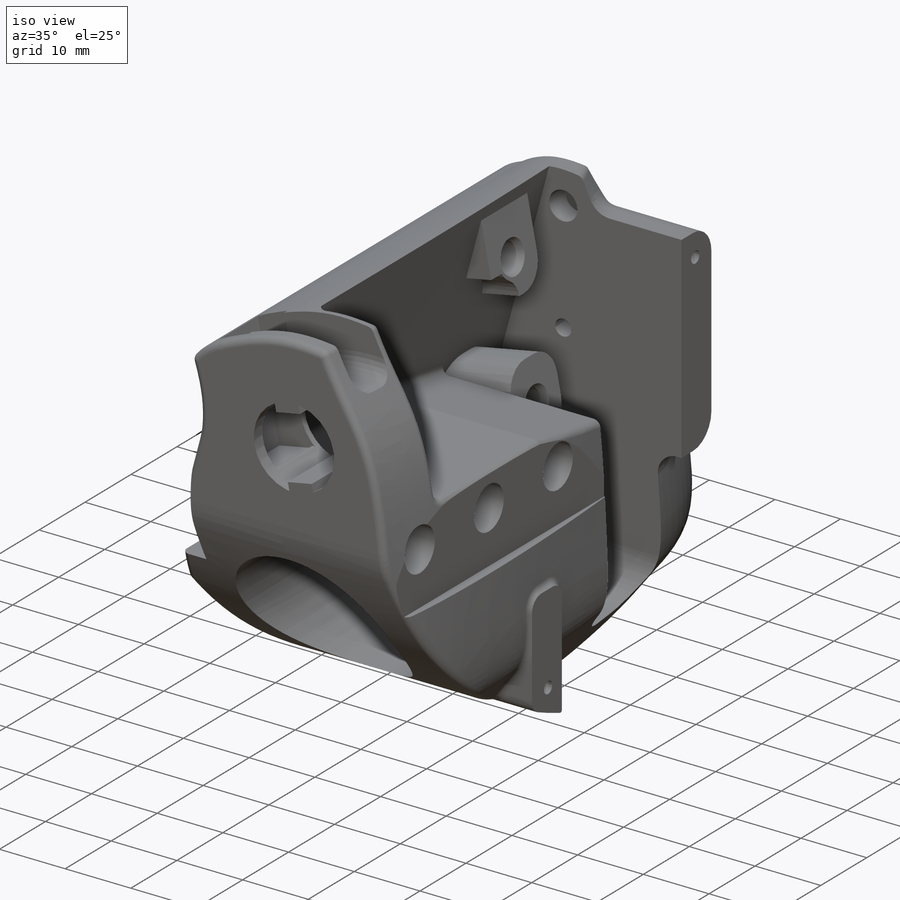
[diagram: iso view]
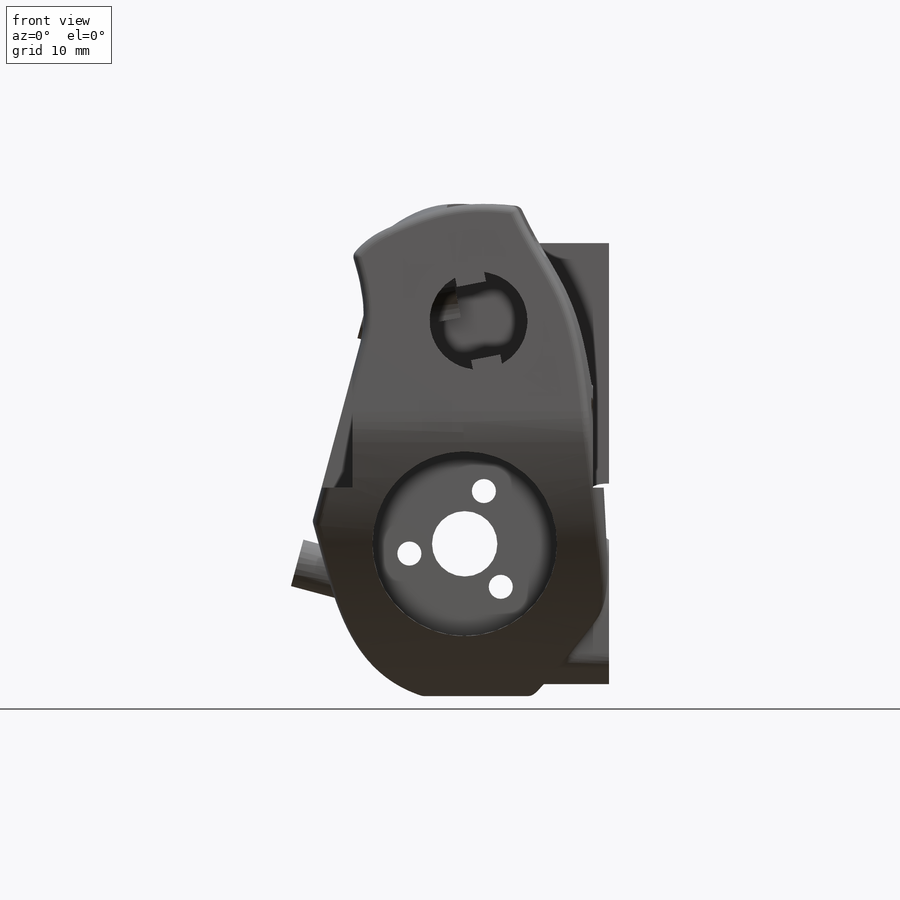
[diagram: front view]
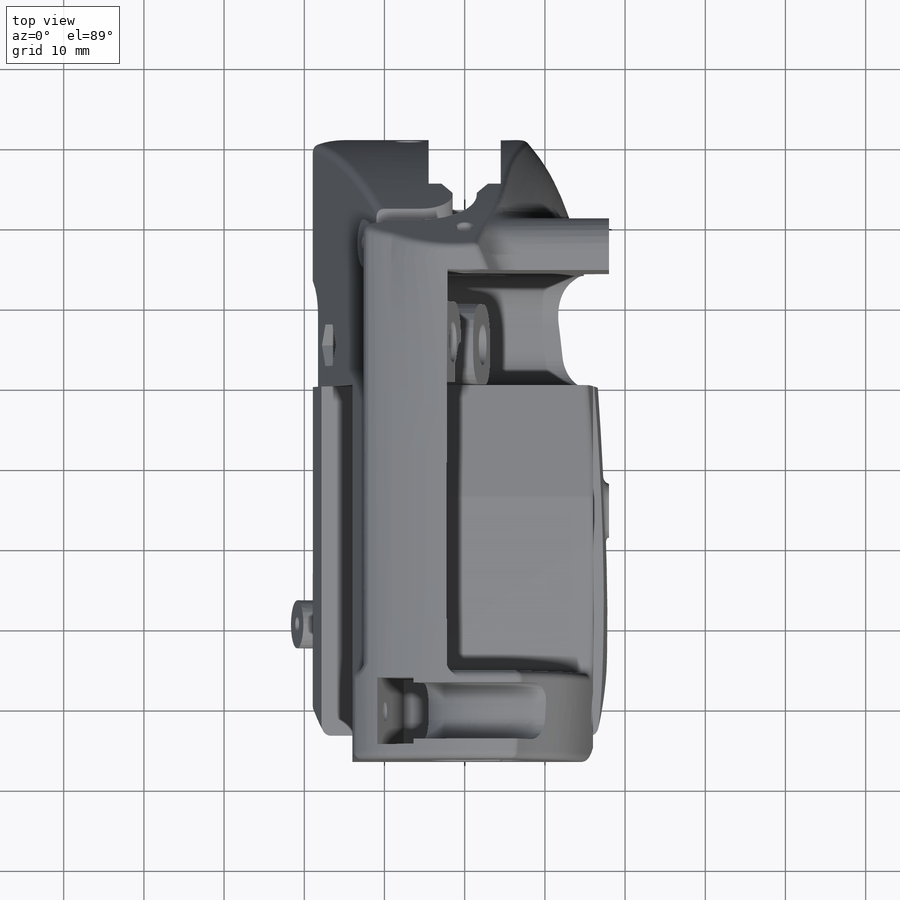
[diagram: top view]
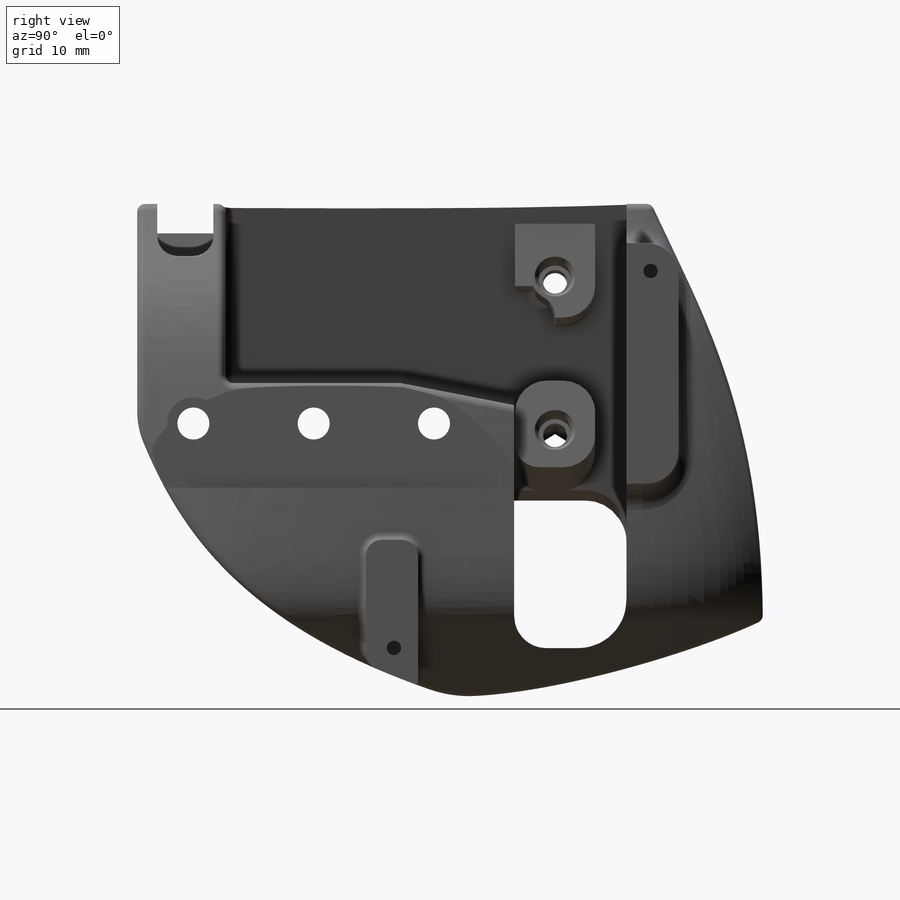
[diagram: right view]
SOLIDWORKS PART (.sldprt)
format: sldprt  version: not decoded by parser v0  size: 2,780,672 bytes
history: native  units: mm
features: sketch x50, fillet x26, cut_extrude x21, plane x17, extrude x10, chamfer x4, pattern_circular x4, cut_revolve x3, material x1, surface_op x1, delete_body x1, pattern_linear x1, move_body x1 + 2 further entries (+9 scaffold rows collapsed; 1 parser-record rows omitted)
feature tree (152):
  scaffold x9  (default folders/planes/origin — collapsed)
  material  "Material <nicht festgelegt>"
  plane  "Vorne"
  plane  "Oben"
  plane  "Rechts"
  sketch  "Skizze1"  dims[D1=33.0mm D2=15.0mm]
  extrude  "Aufsatz-Linear austragen1"  Depth=8mm
  sketch  "Skizze2"  dims[D1=13.0mm]
  plane  "Ebene1"  Offset=14mm
  sketch  "Skizze3"  dims[c1.D1=12.5mm c1.D2=~7.550646mm c1.D3=8.0mm c2.D2=8.0mm c2.D3=1.1mm c2.D4=6.0mm c2.D5=20.0mm]
  plane  "Ebene2"  Offset=36mm
  sketch  "Skizze4"  dims[c1.D3=22.0mm c1.D4=12.2mm c1.D1=1.7mm c1.D2=27.8mm c2.D3=1.7mm c2.D5=1.7mm c3.D5=~10.511736deg c3.D6=4.2mm c3.D7=2.5mm c3.D8=3.1mm c3.D9=5.3mm c3.D10=12.0mm]
  plane  "Ebene3"  Offset=5.1mm
  sketch  "Skizze6"  dims[c1.D1=~36.674242mm c2.D1=~78.996459deg c2.D2=~6.871308mm c3.D2=90.0deg c3.D3=36.0mm c3.D4=4.0mm c3.D5=5.0mm c3.D6=1.0mm c3.D7=26.0mm c3.D8=2.0mm c3.D9=5.0mm]
  sketch  "Skizze11"  dims[c1.D1=7.0mm c1.D2=3.5mm c1.D3=14.0mm c1.D4=5.5mm c2.D3=43.0mm c2.D4=42.0mm c2.D5=~58.694122mm c3.D4=42.0mm c3.D5=28.0mm c3.D6=8.0mm c3.D7=28.0mm c4.D6=30.0mm c4.D7=10.0mm c4.D8=8.0mm c4.D9=19.0mm c4.D10=20.1mm c4.D11=~33.729395mm]
  sketch  "Skizze10"  dims[D1=18.0mm D2=17.0mm D3=46.0mm D4=17.0mm]
  sketch  "Skizze12"  dims[c1.D1=~71.391078mm c2.D1=15.0deg c2.D2=11.5mm c2.D3=41.0mm c2.D4=3.0mm c2.D5=42.0mm c3.D2=20.0mm c3.D3=1.0mm c4.D2=20.0mm c4.D3=1.0mm]
  extrude  "Aufsatz-Linear austragen7"  Depth=46mm
  plane  "Ebene4"  Offset=28mm
  sketch  "Skizze14"  dims[D1=12.0mm D2=14.0mm D3=46.0mm]
  sketch  "Skizze15"  dims[c1.D3=~21.268999mm c1.D4=~9.231116mm c1.D1=6.0mm c1.D2=42.0mm c2.D3=10.0mm c2.D4=15.0mm]
  sketch  "Skizze16"
  surface_op  "Oberfläche-Linear austragen1"
  sketch  "Skizze15<12>"
  sketch  "Skizze17"  dims[c1.D1=22.0mm c2.D1=40.0mm c2.D2=50.0mm]
  sketch  "Skizze18"  dims[D1=19.0mm D2=3.0deg]
  plane  "Ebene5"  Offset=45mm
  sketch  "Skizze19"  dims[c1.D1=4.5mm c1.D2=9.0mm c1.D3=22.0mm c1.D4=12.0mm c2.D1=25.0mm c2.D2=20.0mm]
  plane  "Ebene6"  Offset=8mm
  sketch  "Skizze20"  dims[D1=23.0mm]
  "Oberflächenausfüllung2"
  "Oberflächenausfüllung3"
  delete_body  "Körper-Löschen2"
  sketch  "Skizze21"  dims[c1.D2=13.0mm c1.D1=~71.36895mm c2.D1=15.0deg c2.D3=15.0mm c2.D4=~71.36895mm c3.D4=10.6deg c3.D5=2.0mm c3.D6=60.0mm c3.D7=20.0mm c4.D4=32.0mm]
  cut_extrude  "Schnitt-Linear austragen1"  [1 undecoded]
  sketch  "Skizze23"  dims[c1.D1=20.0mm c1.D2=~32.879159mm c2.D2=~2.210351deg c3.D2=30.0mm c3.D3=30.0mm c3.D4=30.0mm]
  cut_extrude  "Schnitt-Linear austragen2"  [1 undecoded]
  sketch  "Skizze24"  dims[c1.D1=2.5mm c1.D2=2.3mm c1.D3=15.1mm c1.D4=12.5mm c1.D5=10.0mm c1.D6=8.15mm c2.D1=9.5mm c2.D3=10.5mm c2.D7=2.0mm]
  cut_revolve  "Schnitt-Rotation1"  Angle=360deg
  sketch  "Skizze25"  dims[c1.D1=12.25mm c1.D7=12.1mm c1.D2=1.72mm c1.D3=27.8mm c1.D4=27.8mm c2.D4=11.0deg c2.D5=4.6mm c2.D6=3.7mm c2.D7=12.1mm c3.D5=9.3mm c3.D2=1.72mm]
  cut_extrude  "Schnitt-Linear austragen3"  [1 undecoded]
  sketch  "Skizze26"  dims[c1.D1=~71.36895mm c2.D1=11.0deg c2.D2=5.0mm c2.D3=10.0mm c2.D4=11.0mm c3.D3=11.0mm c3.D4=11.0mm c3.D5=8.0mm c4.D3=28.2mm]
  extrude  "Aufsatz-Linear austragen8"  Depth=10mm
  fillet  "Verrundung1"  Radius=4mm
  sketch  "Skizze27"  dims[D1=8.0mm D2=17.0mm D3=9.0mm]
  cut_extrude  "Schnitt-Linear austragen4"  Depth=4.5mm
  sketch  "Skizze28"  dims[D2=2.46mm D1=20.63mm]
  cut_extrude  "Schnitt-Linear austragen5"  [1 undecoded]
  sketch  "Skizze29"  dims[D1=3.0mm D2=19.5mm D3=33.0mm]
  cut_extrude  "Schnitt-Linear austragen6"  [1 undecoded]
  sketch  "Skizze30"  dims[c1.D1=14.0mm c1.D2=36.0mm c1.D3=24.0mm c2.D1=14.0mm c2.D2=36.0mm c2.D3=25.0mm]
  extrude  "Aufsatz-Linear austragen9"  Depth=9mm
  plane  "Ebene7"  Offset=4mm
  sketch  "Skizze33"  dims[c1.D1=~71.36895mm c2.D1=11.0deg c2.D2=4.0mm c2.D3=5.6mm c2.D4=4.8mm c2.D5=4.1mm c2.D6=20.0mm c3.D3=10.3mm]
  cut_extrude  "Schnitt-Linear austragen7"  Depth=8.3mm
  fillet  "Verrundung2"  Radius=0.5mm
  sketch  "Skizze34"  dims[D1=8.0mm D2=3.5mm D3=35.0mm D4=20.0mm D5=8.0mm]
  cut_extrude  "Schnitt-Linear austragen8"  Depth=7mm
  fillet  "Verrundung3"  Radius=2.5mm
  sketch  "Skizze36"  dims[D2=2.46mm D1=12.1mm]
  cut_extrude  "Schnitt-Linear austragen9"  [1 undecoded]
  sketch  "Skizze37"  dims[D1=21.0mm]
  cut_extrude  "Schnitt-Linear austragen10"  [1 undecoded]
  sketch  "Skizze39"  dims[c1.D1=14.0mm c1.D2=3.0mm c1.D3=~52.272938mm c2.D3=50.0deg]
  cut_extrude  "Schnitt-Linear austragen11"  [1 undecoded]
  chamfer  "Fase1"  Distance=0.85mm Angle=45deg
  pattern_circular  "Kreismuster1"  Count=3 Angle=360deg
  sketch  "Skizze40"  dims[D1=4.15mm]
  cut_extrude  "Schnitt-Linear austragen12"  Depth=3.5mm
  plane  "Ebene8"  Offset=2mm
  sketch  "Skizze41"  dims[D1=5.2mm D2=5.2mm]
  cut_extrude  "Schnitt-Linear austragen13"  [1 undecoded]
  chamfer  "Fläche verschieben5"  Distance=0.5mm
  chamfer  "Fläche verschieben6"  Distance=2mm
  chamfer  "Fläche verschieben7"  Distance=1mm
  sketch  "Skizze50"  dims[D1=5.0mm D2=~4.70783mm]
  extrude  "Aufsatz-Linear austragen11"  [1 undecoded]
  sketch  "Skizze38"  dims[D1=37.4mm D2=2.0mm D3=4.3mm D4=3.5mm D5=6.0mm]
  cut_revolve  "Schnitt-Rotation2"  Angle=360deg
  fillet  "Verrundung4"  Radius=0.2mm
  fillet  "Verrundung6"  Radius=15mm
  fillet  "Verrundung7"  Radius=10mm
  pattern_circular  "Fase3"  Angle=11deg  [1 undecoded]
  fillet  "Verrundung8"  Radius=1mm
  fillet  "Verrundung9"  Radius=1mm
  fillet  "Verrundung10"  Radius=1mm
  fillet  "Verrundung11"  Radius=6mm
  fillet  "Verrundung12"  Radius=1mm
  sketch  "Skizze42"  dims[D3=4.0mm D1=3.0mm D2=8.0mm D4=15.0mm]
  cut_extrude  "Schnitt-Linear austragen14"  [1 undecoded]
  fillet  "Verrundung13"  Radius=1mm
  sketch  "Skizze44"  dims[D1=20.0mm]
  cut_extrude  "Schnitt-Linear austragen16"  [1 undecoded]
  sketch  "Skizze45"  dims[D1=3.0mm D2=3.0mm D3=4.0mm]
  cut_extrude  "Schnitt-Linear austragen17"  [1 undecoded]
  fillet  "Verrundung14"  Radius=5mm
  plane  "Ebene9"  Offset=10mm
  plane  "Ebene10"  Offset=15mm
  plane  "Ebene11"  Offset=6mm
  sketch  "Skizze54"  dims[D1=5.2mm D2=13.0mm D3=13.0mm D4=9.0mm D5=7.5mm D6=10.0mm]
  sketch  "Skizze55"  dims[D1=3.0mm]
  sketch  "Skizze57"  dims[D1=3.5mm]
  cut_extrude  "Schnitt-Linear austragen24"  [1 undecoded]
  fillet  "Verrundung20"  Radius=0.2mm
  pattern_circular  "Fase4"  Angle=25deg  [1 undecoded]
  pattern_circular  "Fase5"  Angle=25deg  [1 undecoded]
  fillet  "Verrundung23"  Radius=1mm
  fillet  "Verrundung24"  Radius=1mm
  sketch  "Skizze59"  dims[D1=22.0mm D2=14.0mm D3=15.0mm D4=6.0mm D5=16.0mm]
  cut_extrude  "Schnitt-Linear austragen26"  Depth=15mm
  fillet  "Verrundung25"  Radius=1mm
  fillet  "Verrundung26"  Radius=1mm
  fillet  "Verrundung27"  Radius=1mm
  plane  "Ebene13"  Offset=5mm
  sketch  "Skizze60"  dims[D1=6.5mm D2=4.0mm D3=11.0mm D4=10.0mm D5=12.0mm D6=10.0mm D7=8.0mm]
  cut_revolve  "Schnitt-Rotation3"  Angle=360deg
  pattern_linear  "Lineares Muster1"  Count1=3 Count2=1 Spacing1=15mm Spacing2=1mm
  sketch  "Skizze61"  dims[D1=37.5mm D2=13.5mm D3=30.0mm]
  extrude  "Aufsatz-Linear austragen12"  Depth=6.5mm
  fillet  "Verrundung28"  Radius=4mm
  sketch  "Skizze63"  dims[D1=0.0mm]
  extrude  "Aufsatz-Linear austragen13"  [1 undecoded]
  fillet  "Verrundung29"  Radius=4mm
  fillet  "Verrundung30"  Radius=3mm
  plane  "Ebene14"  Offset=39mm
  sketch  "Skizze64"  dims[D1=25.0mm D2=18.0mm D3=9.0mm D4=17.5mm D5=18.0mm]
  extrude  "Aufsatz-Linear austragen14"  Depth=6.5mm
  sketch  "Skizze65"  dims[D1=0.0mm]
  cut_extrude  "Schnitt-Linear austragen27"  [1 undecoded]
  fillet  "Verrundung31"  Radius=2mm
  fillet  "Verrundung33"  [1 undecoded]
  fillet  "Verrundung32"  Radius=1mm
  plane  "Ebene15"  Offset=0.5mm
  sketch  "Skizze66"  dims[D1=1.8mm D2=6.0mm D3=32.0mm D4=47.0mm D5=29.5mm D6=24.3mm]
  extrude  "Aufsatz-Linear austragen15"  [1 undecoded]
  extrude  "Aufsatz-Linear austragen16"  [1 undecoded]
  sketch  "Skizze66<4>"
  sketch  "Skizze67"  dims[D1=0.0mm]
  cut_extrude  "Schnitt-Linear austragen28"  Depth=6mm
  sketch  "Skizze68"  dims[D5=1.8mm D1=32.0mm D2=47.0mm D3=34.0mm D4=17.0mm]
  cut_extrude  "Schnitt-Linear austragen29"  Depth=10mm
  fillet  "Verrundung34"  Radius=4mm
  parser-record x1  (decoder bookkeeping rows leaked as tree rows — omitted from the tree; the rows remain in map.json)
  move_body  "Körper-Verschieben/Kopieren1"
decode coverage: 97 of 122 modeling features carry decoded parameters; 2 rows unclassified (native names shown)
note: ~ marks probable driven/reference dimensions
note: 22 parameter values undecoded
summary: no parameter record found for 19 features
note: suppression state not decoded; provenance and decode notes live in map.json
